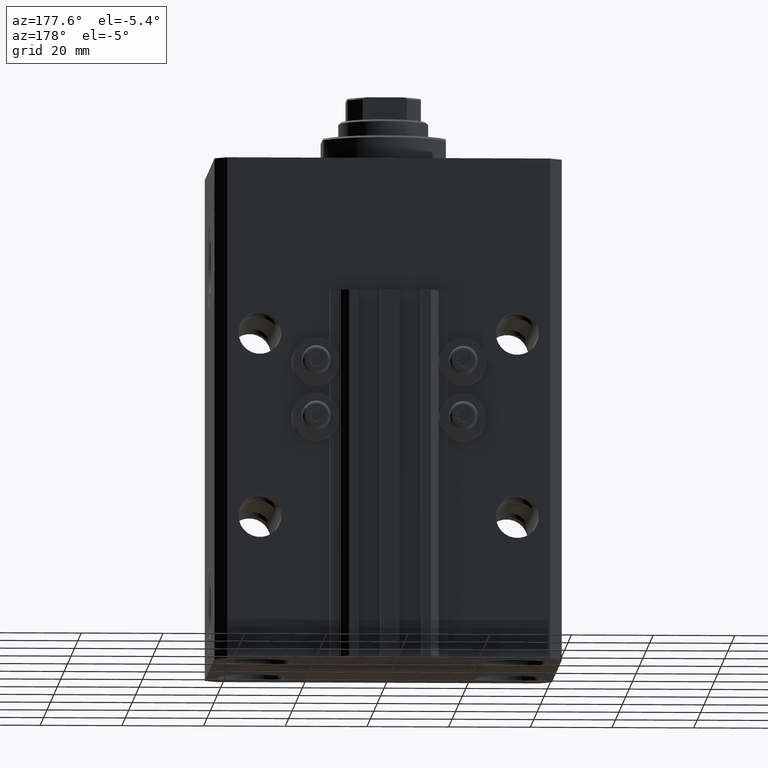
[diagram: clean part render]
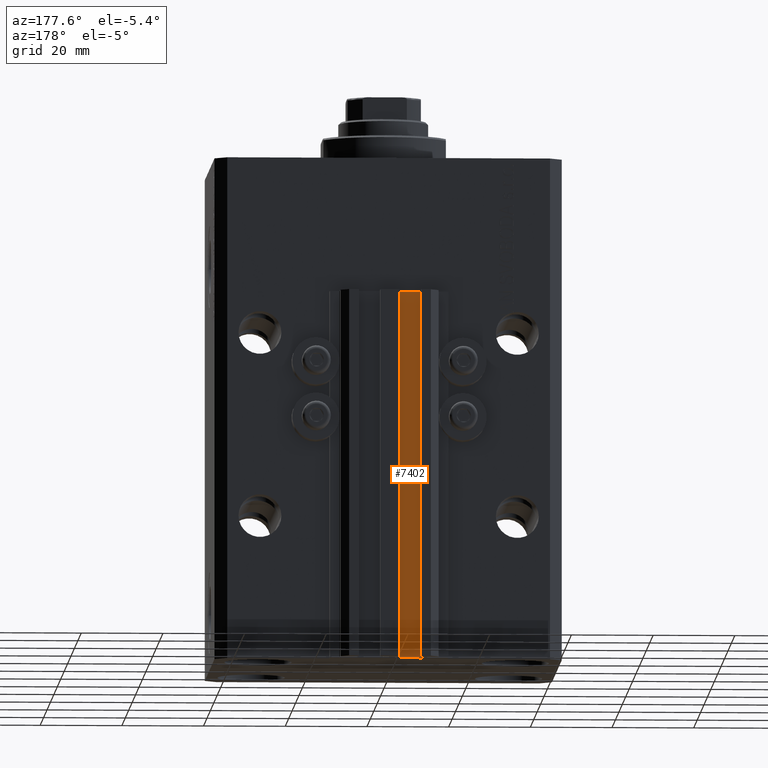
[diagram: same view with one face highlighted and labeled with its STEP entity id]
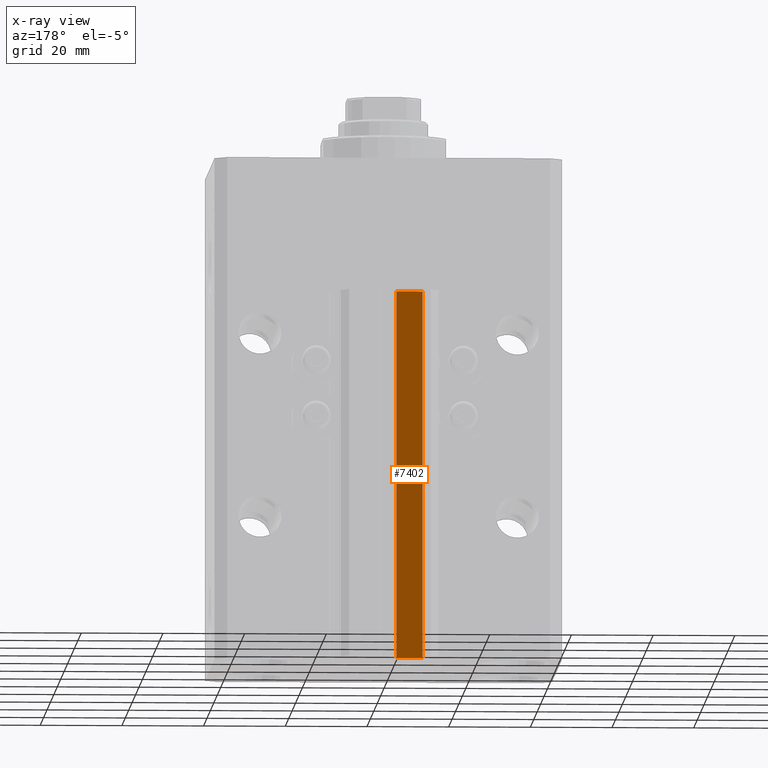
[diagram: x-ray of the same camera — body ghosted, the highlighted face saturated]
A machine part, auxiliary view. The second image highlights one B-rep face of the part: STEP entity #7402.
The next image is the same camera in x-ray: the body ghosted, the highlighted face saturated — about 0% of this face is hidden behind the body in this view.
In plain terms, the highlighted planar face has unit normal (0, 1, 0).
Its self-contained STEP definition (entity closure, byte-faithful):
#104 = VECTOR ( 'NONE', #128, 1000.000000000000000 ) ;
#128 = DIRECTION ( 'NONE',  ( -1.000000000000000000, 0.000000000000000000, 0.000000000000000000 ) ) ;
#866 = CARTESIAN_POINT ( 'NONE',  ( -8.199999999999997513, 33.50000000000000000, -123.0000000000000000 ) ) ;
#1044 = DIRECTION ( 'NONE',  ( -1.000000000000000000, 0.000000000000000000, 0.000000000000000000 ) ) ;
#1194 = VERTEX_POINT ( 'NONE', #17090 ) ;
#1286 = CARTESIAN_POINT ( 'NONE',  ( -1.800000000000000933, 33.50000000000000000, -123.0000000000000000 ) ) ;
#2064 = DIRECTION ( 'NONE',  ( 0.000000000000000000, 0.000000000000000000, 1.000000000000000000 ) ) ;
#2864 = VECTOR ( 'NONE', #1044, 1000.000000000000000 ) ;
#4530 = EDGE_CURVE ( 'NONE', #1194, #19556, #6978, .T. ) ;
#4564 = VECTOR ( 'NONE', #10147, 1000.000000000000000 ) ;
#4761 = CARTESIAN_POINT ( 'NONE',  ( -1.800000000000000933, 33.50000000000000000, -33.00000000000000000 ) ) ;
#6076 = ORIENTED_EDGE ( 'NONE', *, *, #10383, .F. ) ;
#6978 = LINE ( 'NONE', #36404, #4564 ) ;
#7402 = ADVANCED_FACE ( 'NONE', ( #41994 ), #8653, .T. ) ;
#8653 = PLANE ( 'NONE',  #17852 ) ;
#10147 = DIRECTION ( 'NONE',  ( 0.000000000000000000, 0.000000000000000000, 1.000000000000000000 ) ) ;
#10383 = EDGE_CURVE ( 'NONE', #19556, #27674, #24723, .T. ) ;
#12492 = LINE ( 'NONE', #1286, #2864 ) ;
#12560 = EDGE_LOOP ( 'NONE', ( #6076, #17235, #45469, #44139 ) ) ;
#14351 = EDGE_CURVE ( 'NONE', #34693, #27674, #18097, .T. ) ;
#17090 = CARTESIAN_POINT ( 'NONE',  ( -1.800000000000000933, 33.50000000000000000, -123.0000000000000000 ) ) ;
#17235 = ORIENTED_EDGE ( 'NONE', *, *, #4530, .F. ) ;
#17852 = AXIS2_PLACEMENT_3D ( 'NONE', #46115, #23712, #2064 ) ;
#18097 = LINE ( 'NONE', #25867, #35219 ) ;
#19556 = VERTEX_POINT ( 'NONE', #42067 ) ;
#22203 = DIRECTION ( 'NONE',  ( 0.000000000000000000, 0.000000000000000000, 1.000000000000000000 ) ) ;
#23712 = DIRECTION ( 'NONE',  ( 0.000000000000000000, 1.000000000000000000, -0.000000000000000000 ) ) ;
#24723 = LINE ( 'NONE', #4761, #104 ) ;
#25867 = CARTESIAN_POINT ( 'NONE',  ( -8.199999999999997513, 33.50000000000000000, -123.0000000000000000 ) ) ;
#27674 = VERTEX_POINT ( 'NONE', #43477 ) ;
#31849 = EDGE_CURVE ( 'NONE', #1194, #34693, #12492, .T. ) ;
#34693 = VERTEX_POINT ( 'NONE', #866 ) ;
#35219 = VECTOR ( 'NONE', #22203, 1000.000000000000000 ) ;
#36404 = CARTESIAN_POINT ( 'NONE',  ( -1.800000000000000933, 33.50000000000000000, -123.0000000000000000 ) ) ;
#41994 = FACE_OUTER_BOUND ( 'NONE', #12560, .T. ) ;
#42067 = CARTESIAN_POINT ( 'NONE',  ( -1.800000000000000933, 33.50000000000000000, -33.00000000000000000 ) ) ;
#43477 = CARTESIAN_POINT ( 'NONE',  ( -8.199999999999997513, 33.50000000000000000, -33.00000000000000000 ) ) ;
#44139 = ORIENTED_EDGE ( 'NONE', *, *, #14351, .T. ) ;
#45469 = ORIENTED_EDGE ( 'NONE', *, *, #31849, .T. ) ;
#46115 = CARTESIAN_POINT ( 'NONE',  ( -1.800000000000000933, 33.50000000000000000, -123.0000000000000000 ) ) ;